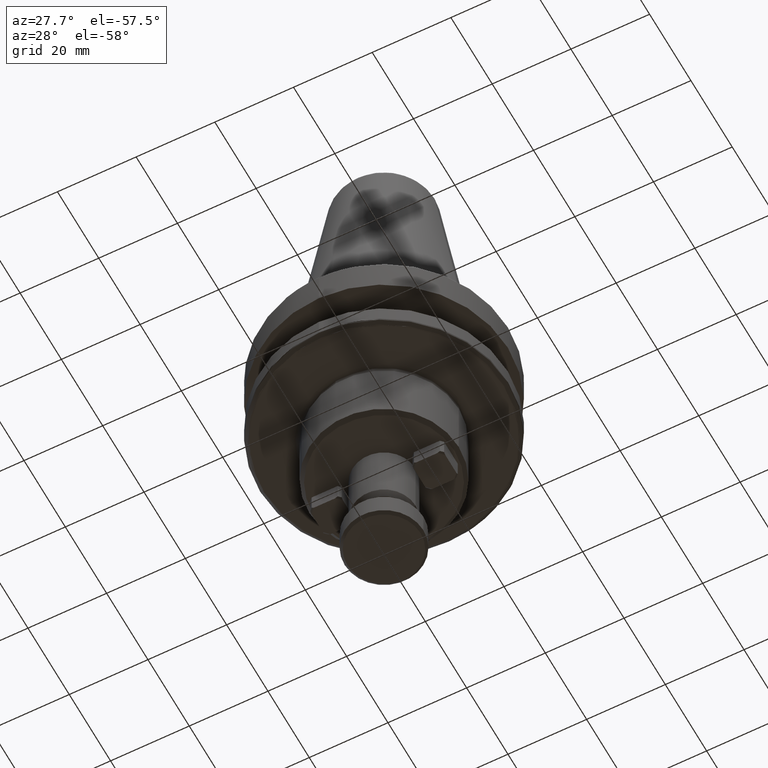
[diagram: clean part render]
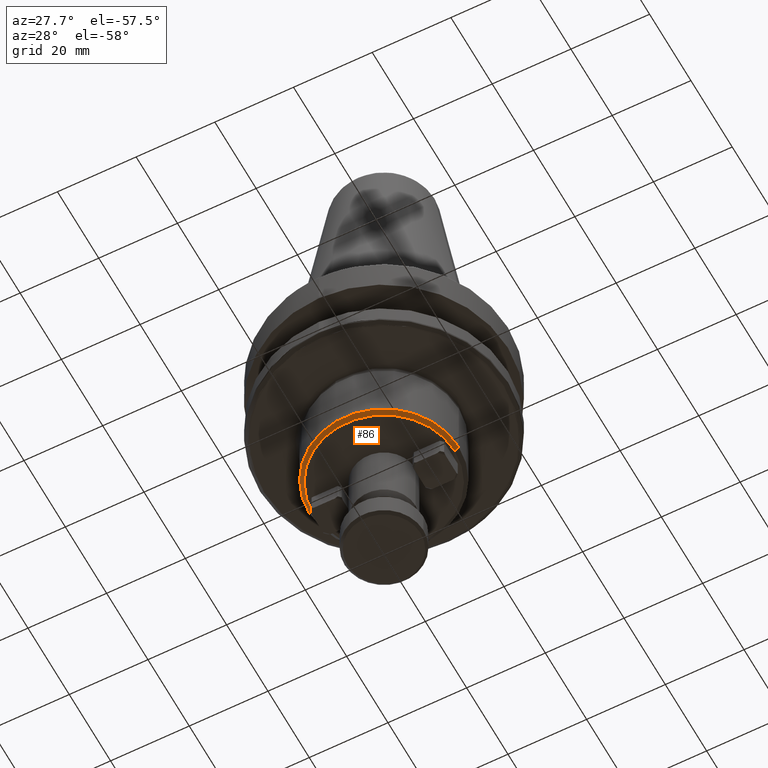
[diagram: same view with one face highlighted and labeled with its STEP entity id]
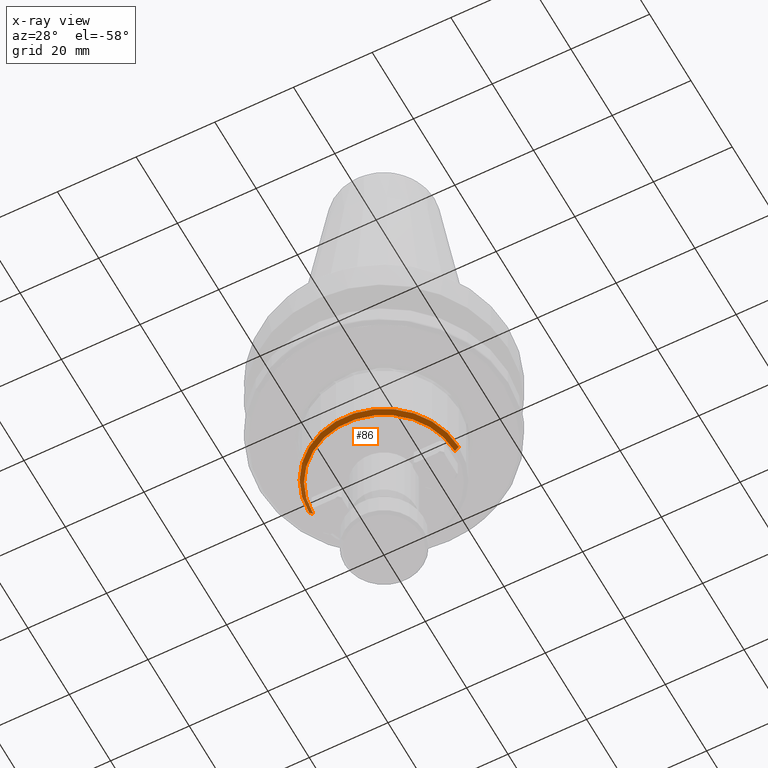
[diagram: x-ray of the same camera — body ghosted, the highlighted face saturated]
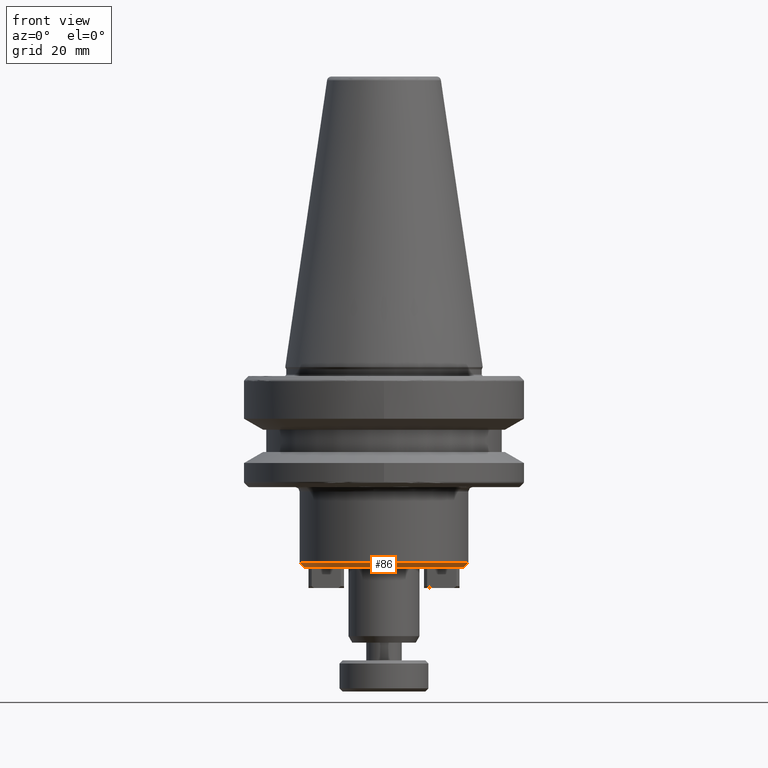
[diagram: same view with one face highlighted and labeled with its STEP entity id]
A machine part, auxiliary view. The second image highlights one B-rep face of the part: STEP entity #86.
The next image is the same camera in x-ray: the body ghosted, the highlighted face saturated — about 0% of this face is hidden behind the body in this view.
A second angle (front view) of the same face is appended — the face is thin or edge-on in the first view.
In plain terms, the highlighted conical surface has half-angle 45 deg.
Its self-contained STEP definition (entity closure, byte-faithful):
#86 = ADVANCED_FACE ( 'NONE', ( #1880 ), #3207, .T. ) ;
#203 = VECTOR ( 'NONE', #1238, 1000.000000000000000 ) ;
#316 = DIRECTION ( 'NONE',  ( 0.0000000000000000000, -0.0000000000000000000, 1.000000000000000000 ) ) ;
#374 = EDGE_CURVE ( 'NONE', #1457, #3011, #1752, .T. ) ;
#538 = ORIENTED_EDGE ( 'NONE', *, *, #2951, .F. ) ;
#693 = CARTESIAN_POINT ( 'NONE',  ( -17.99999999999996100, 2.265596578422600600E-015, -45.00000000000004300 ) ) ;
#801 = DIRECTION ( 'NONE',  ( 1.000000000000000000, 0.0000000000000000000, 0.0000000000000000000 ) ) ;
#803 = DIRECTION ( 'NONE',  ( 0.7071067811865463500, 0.0000000000000000000, 0.7071067811865487900 ) ) ;
#980 = AXIS2_PLACEMENT_3D ( 'NONE', #2089, #316, #1486 ) ;
#1130 = CARTESIAN_POINT ( 'NONE',  ( 17.99999999999996100, 0.0000000000000000000, -45.00000000000004300 ) ) ;
#1217 = CIRCLE ( 'NONE', #1635, 19.00000000000000000 ) ;
#1230 = EDGE_LOOP ( 'NONE', ( #2268, #2274, #3097, #538 ) ) ;
#1238 = DIRECTION ( 'NONE',  ( -0.7071067811865463500, 8.659560562354918100E-017, 0.7071067811865487900 ) ) ;
#1453 = VERTEX_POINT ( 'NONE', #3088 ) ;
#1457 = VERTEX_POINT ( 'NONE', #693 ) ;
#1486 = DIRECTION ( 'NONE',  ( 1.000000000000000000, 0.0000000000000000000, 0.0000000000000000000 ) ) ;
#1512 = LINE ( 'NONE', #2122, #203 ) ;
#1635 = AXIS2_PLACEMENT_3D ( 'NONE', #1696, #3801, #1987 ) ;
#1648 = DIRECTION ( 'NONE',  ( 0.0000000000000000000, -0.0000000000000000000, 1.000000000000000000 ) ) ;
#1696 = CARTESIAN_POINT ( 'NONE',  ( 0.0000000000000000000, 0.0000000000000000000, -44.00000000000004300 ) ) ;
#1752 = CIRCLE ( 'NONE', #2314, 17.99999999999996100 ) ;
#1880 = FACE_OUTER_BOUND ( 'NONE', #1230, .T. ) ;
#1885 = VERTEX_POINT ( 'NONE', #2073 ) ;
#1931 = CARTESIAN_POINT ( 'NONE',  ( 0.0000000000000000000, 0.0000000000000000000, -45.00000000000004300 ) ) ;
#1956 = EDGE_CURVE ( 'NONE', #1457, #1885, #1512, .T. ) ;
#1987 = DIRECTION ( 'NONE',  ( 1.000000000000000000, 0.0000000000000000000, 2.191229653865440500E-015 ) ) ;
#2073 = CARTESIAN_POINT ( 'NONE',  ( -19.00000000000000000, 2.326828918379971000E-015, -44.00000000000004300 ) ) ;
#2089 = CARTESIAN_POINT ( 'NONE',  ( 0.0000000000000000000, 0.0000000000000000000, -45.00000000000000000 ) ) ;
#2122 = CARTESIAN_POINT ( 'NONE',  ( -18.00000000000000400, 2.204364238465235800E-015, -45.00000000000000000 ) ) ;
#2268 = ORIENTED_EDGE ( 'NONE', *, *, #1956, .F. ) ;
#2274 = ORIENTED_EDGE ( 'NONE', *, *, #374, .T. ) ;
#2294 = CARTESIAN_POINT ( 'NONE',  ( 18.00000000000000400, 0.0000000000000000000, -45.00000000000000000 ) ) ;
#2314 = AXIS2_PLACEMENT_3D ( 'NONE', #1931, #1648, #801 ) ;
#2500 = VECTOR ( 'NONE', #803, 1000.000000000000000 ) ;
#2543 = LINE ( 'NONE', #2294, #2500 ) ;
#2951 = EDGE_CURVE ( 'NONE', #1885, #1453, #1217, .T. ) ;
#3011 = VERTEX_POINT ( 'NONE', #1130 ) ;
#3088 = CARTESIAN_POINT ( 'NONE',  ( 19.00000000000000000, 0.0000000000000000000, -44.00000000000000000 ) ) ;
#3097 = ORIENTED_EDGE ( 'NONE', *, *, #3561, .T. ) ;
#3207 = CONICAL_SURFACE ( 'NONE', #980, 18.00000000000000400, 0.7853981633974466100 ) ;
#3561 = EDGE_CURVE ( 'NONE', #3011, #1453, #2543, .T. ) ;
#3801 = DIRECTION ( 'NONE',  ( 0.0000000000000000000, 0.0000000000000000000, 1.000000000000000000 ) ) ;